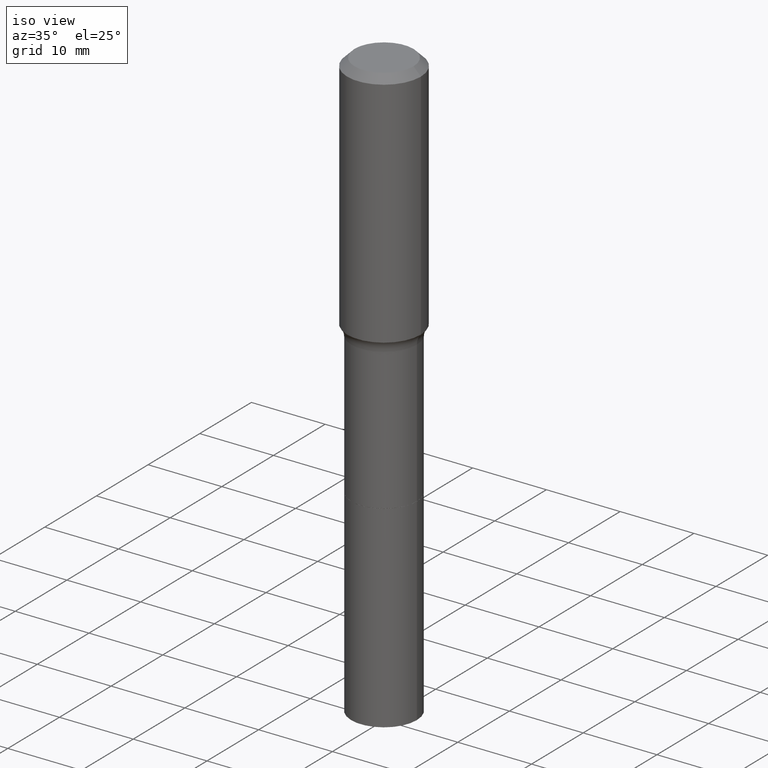
[diagram: clean part render]
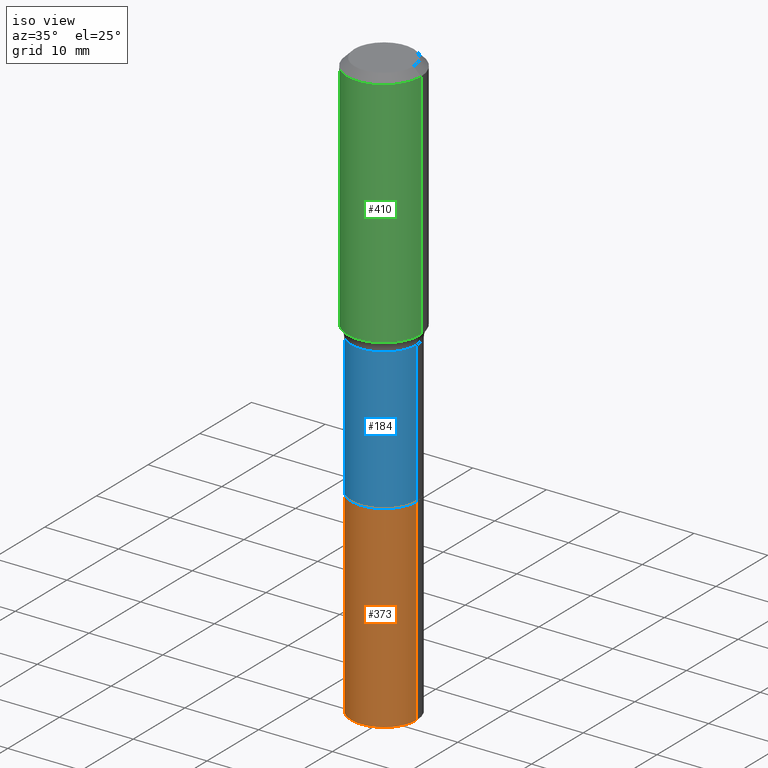
[diagram: same view with three faces highlighted in distinct colors, each labeled with its STEP entity id]
A machine part, iso view with three faces highlighted in distinct colors.
Their STEP definitions:

[orange] entity #373 — the highlighted cylindrical surface (partial cylindrical patch) has radius 4.4501 mm, axis along (-0, 0, 1).
#24 = ORIENTED_EDGE ( 'NONE', *, *, #315, .T. ) ;
#35 = CARTESIAN_POINT ( 'NONE',  ( 5.122278961435387736E-29, -7.313256812340853051E-15, -2.094600000000000239 ) ) ;
#40 = EDGE_CURVE ( 'NONE', #203, #352, #257, .T. ) ;
#47 = ORIENTED_EDGE ( 'NONE', *, *, #207, .F. ) ;
#55 = ORIENTED_EDGE ( 'NONE', *, *, #176, .F. ) ;
#60 = VECTOR ( 'NONE', #334, 39.37007874015748143 ) ;
#72 = DIRECTION ( 'NONE',  ( -2.445468806185136597E-29, 3.491481338843145583E-15, 1.000000000000000000 ) ) ;
#93 = AXIS2_PLACEMENT_3D ( 'NONE', #404, #169, #510 ) ;
#100 = VECTOR ( 'NONE', #145, 39.37007874015748143 ) ;
#103 = CARTESIAN_POINT ( 'NONE',  ( 0.1752000000000001889, -1.222018468595100619E-14, -3.149600000000000399 ) ) ;
#131 = EDGE_LOOP ( 'NONE', ( #55, #24, #154, #47 ) ) ;
#145 = DIRECTION ( 'NONE',  ( -2.445468806185136877E-29, 3.491481338843145188E-15, 1.000000000000000000 ) ) ;
#154 = ORIENTED_EDGE ( 'NONE', *, *, #40, .T. ) ;
#161 = AXIS2_PLACEMENT_3D ( 'NONE', #35, #72, #500 ) ;
#169 = DIRECTION ( 'NONE',  ( -2.445468806185136597E-29, 3.491481338843145583E-15, 1.000000000000000000 ) ) ;
#176 = EDGE_CURVE ( 'NONE', #420, #361, #221, .T. ) ;
#194 = CARTESIAN_POINT ( 'NONE',  ( 5.122278961435387736E-29, -7.313256812340853051E-15, -2.094600000000000239 ) ) ;
#203 = VERTEX_POINT ( 'NONE', #103 ) ;
#207 = EDGE_CURVE ( 'NONE', #361, #352, #399, .T. ) ;
#221 = LINE ( 'NONE', #412, #60 ) ;
#242 = FACE_OUTER_BOUND ( 'NONE', #131, .T. ) ;
#246 = AXIS2_PLACEMENT_3D ( 'NONE', #194, #340, #309 ) ;
#257 = LINE ( 'NONE', #501, #100 ) ;
#262 = CIRCLE ( 'NONE', #93, 0.1752000000000001889 ) ;
#309 = DIRECTION ( 'NONE',  ( 1.000000000000000000, -6.982962677686269077E-15, 0.000000000000000000 ) ) ;
#315 = EDGE_CURVE ( 'NONE', #420, #203, #262, .T. ) ;
#334 = DIRECTION ( 'NONE',  ( -2.445468806185136877E-29, 3.491481338843145188E-15, 1.000000000000000000 ) ) ;
#340 = DIRECTION ( 'NONE',  ( -2.445468806185136597E-29, 3.491481338843145583E-15, 1.000000000000000000 ) ) ;
#348 = CARTESIAN_POINT ( 'NONE',  ( -0.1751999999999999946, -7.910142345528915418E-15, -2.094600000000000239 ) ) ;
#352 = VERTEX_POINT ( 'NONE', #434 ) ;
#361 = VERTEX_POINT ( 'NONE', #348 ) ;
#373 = ADVANCED_FACE ( 'NONE', ( #242 ), #424, .T. ) ;
#399 = CIRCLE ( 'NONE', #246, 0.1751999999999999946 ) ;
#404 = CARTESIAN_POINT ( 'NONE',  ( 7.702248551960706711E-29, -1.099676962482037231E-14, -3.149600000000000399 ) ) ;
#412 = CARTESIAN_POINT ( 'NONE',  ( -0.1752000000000000779, -6.068385939289156578E-15, -2.094600000000000239 ) ) ;
#420 = VERTEX_POINT ( 'NONE', #511 ) ;
#424 = CYLINDRICAL_SURFACE ( 'NONE', #161, 0.1752000000000000779 ) ;
#434 = CARTESIAN_POINT ( 'NONE',  ( 0.1751999999999999946, -8.536671873471486928E-15, -2.094600000000000239 ) ) ;
#500 = DIRECTION ( 'NONE',  ( 1.000000000000000000, -6.982962677686265922E-15, 0.000000000000000000 ) ) ;
#501 = CARTESIAN_POINT ( 'NONE',  ( 0.1752000000000000779, -8.536671873471486928E-15, -2.094600000000000239 ) ) ;
#510 = DIRECTION ( 'NONE',  ( 1.000000000000000000, -6.982962677686261189E-15, 0.000000000000000000 ) ) ;
#511 = CARTESIAN_POINT ( 'NONE',  ( -0.1752000000000001889, -7.910142345528913840E-15, -3.149600000000000399 ) ) ;

[blue] entity #184 — the highlighted cylindrical surface (partial cylindrical patch) has radius 4.4501 mm, axis along (-0, 0, 1).
#2 = CARTESIAN_POINT ( 'NONE',  ( 0.1751999999999998836, -5.897111981306068614E-15, -1.338600000000000234 ) ) ;
#5 = ORIENTED_EDGE ( 'NONE', *, *, #284, .T. ) ;
#16 = FACE_OUTER_BOUND ( 'NONE', #251, .T. ) ;
#20 = VECTOR ( 'NONE', #397, 39.37007874015748143 ) ;
#44 = DIRECTION ( 'NONE',  ( -2.445468806185136597E-29, 3.491481338843145583E-15, 1.000000000000000000 ) ) ;
#46 = CARTESIAN_POINT ( 'NONE',  ( -0.1751999999999999391, 1.244870873051695093E-15, -8.617974278126592972E-30 ) ) ;
#63 = EDGE_CURVE ( 'NONE', #268, #492, #302, .T. ) ;
#76 = CARTESIAN_POINT ( 'NONE',  ( 0.1751999999999999946, -8.534926132802064636E-15, -2.094100000000000072 ) ) ;
#78 = DIRECTION ( 'NONE',  ( 1.000000000000000000, -6.982962677686266711E-15, 4.876176775795935793E-29 ) ) ;
#80 = EDGE_CURVE ( 'NONE', #436, #492, #282, .T. ) ;
#98 = CARTESIAN_POINT ( 'NONE',  ( 3.273504543959424474E-29, -4.673696920175435525E-15, -1.338600000000000234 ) ) ;
#110 = DIRECTION ( 'NONE',  ( 1.000000000000000000, -6.982962677686267499E-15, 0.000000000000000000 ) ) ;
#117 = AXIS2_PLACEMENT_3D ( 'NONE', #387, #196, #391 ) ;
#167 = CARTESIAN_POINT ( 'NONE',  ( -0.1751999999999999946, -4.747733122871737457E-15, -2.094100000000000072 ) ) ;
#184 = ADVANCED_FACE ( 'NONE', ( #16 ), #245, .T. ) ;
#196 = DIRECTION ( 'NONE',  ( -2.445468806185136597E-29, 3.491481338843145583E-15, 1.000000000000000000 ) ) ;
#211 = VECTOR ( 'NONE', #382, 39.37007874015748143 ) ;
#217 = ORIENTED_EDGE ( 'NONE', *, *, #80, .F. ) ;
#245 = CYLINDRICAL_SURFACE ( 'NONE', #418, 0.1751999999999999391 ) ;
#251 = EDGE_LOOP ( 'NONE', ( #409, #5, #311, #217 ) ) ;
#268 = VERTEX_POINT ( 'NONE', #76 ) ;
#282 = CIRCLE ( 'NONE', #445, 0.1751999999999998836 ) ;
#284 = EDGE_CURVE ( 'NONE', #472, #268, #489, .T. ) ;
#302 = LINE ( 'NONE', #488, #211 ) ;
#311 = ORIENTED_EDGE ( 'NONE', *, *, #63, .T. ) ;
#324 = LINE ( 'NONE', #46, #20 ) ;
#342 = CARTESIAN_POINT ( 'NONE',  ( -0.1751999999999998836, -4.747733122871738246E-15, -1.338600000000000234 ) ) ;
#355 = CARTESIAN_POINT ( 'NONE',  ( 0.000000000000000000, 0.000000000000000000, 0.000000000000000000 ) ) ;
#382 = DIRECTION ( 'NONE',  ( -2.445468806185136877E-29, 3.491481338843145188E-15, 1.000000000000000000 ) ) ;
#387 = CARTESIAN_POINT ( 'NONE',  ( 5.121056227032294935E-29, -7.311511071671430759E-15, -2.094100000000000072 ) ) ;
#391 = DIRECTION ( 'NONE',  ( 1.000000000000000000, -6.982962677686263555E-15, 0.000000000000000000 ) ) ;
#397 = DIRECTION ( 'NONE',  ( -2.445468806185136877E-29, 3.491481338843145188E-15, 1.000000000000000000 ) ) ;
#409 = ORIENTED_EDGE ( 'NONE', *, *, #450, .F. ) ;
#418 = AXIS2_PLACEMENT_3D ( 'NONE', #355, #44, #78 ) ;
#436 = VERTEX_POINT ( 'NONE', #342 ) ;
#445 = AXIS2_PLACEMENT_3D ( 'NONE', #98, #449, #110 ) ;
#449 = DIRECTION ( 'NONE',  ( -2.445468806185136597E-29, 3.491481338843145583E-15, 1.000000000000000000 ) ) ;
#450 = EDGE_CURVE ( 'NONE', #472, #436, #324, .T. ) ;
#472 = VERTEX_POINT ( 'NONE', #167 ) ;
#488 = CARTESIAN_POINT ( 'NONE',  ( 0.1751999999999999391, -1.223415061130633483E-15, 8.543061711194476516E-30 ) ) ;
#489 = CIRCLE ( 'NONE', #117, 0.1751999999999999946 ) ;
#492 = VERTEX_POINT ( 'NONE', #2 ) ;

[green] entity #410 — the highlighted cylindrical surface (partial cylindrical patch) has radius 5 mm, axis along (-0, 0, 1).
#1 = DIRECTION ( 'NONE',  ( -2.445468806185136877E-29, 3.491481338843145188E-15, 1.000000000000000000 ) ) ;
#27 = DIRECTION ( 'NONE',  ( 1.000000000000000000, -6.982962677686266711E-15, 4.876176775795935793E-29 ) ) ;
#32 = EDGE_CURVE ( 'NONE', #233, #358, #407, .T. ) ;
#42 = ORIENTED_EDGE ( 'NONE', *, *, #189, .T. ) ;
#68 = VECTOR ( 'NONE', #1, 39.37007874015748143 ) ;
#73 = ORIENTED_EDGE ( 'NONE', *, *, #366, .T. ) ;
#142 = VECTOR ( 'NONE', #310, 39.37007874015748143 ) ;
#148 = DIRECTION ( 'NONE',  ( -2.445468806185136597E-29, 3.491481338843145583E-15, 1.000000000000000000 ) ) ;
#153 = CARTESIAN_POINT ( 'NONE',  ( 0.1968500000000001915, -5.857205674196988866E-15, -1.283870379378770243 ) ) ;
#155 = CARTESIAN_POINT ( 'NONE',  ( 0.1968500000000001082, -1.374596203102542397E-15, 9.598753983154305062E-30 ) ) ;
#183 = CARTESIAN_POINT ( 'NONE',  ( 9.627810689950955906E-31, -1.374596203102556794E-16, -0.03937000000000030059 ) ) ;
#189 = EDGE_CURVE ( 'NONE', #403, #358, #507, .T. ) ;
#227 = CARTESIAN_POINT ( 'NONE',  ( 3.139664963955859804E-29, -4.482609471094445680E-15, -1.283870379378770243 ) ) ;
#233 = VERTEX_POINT ( 'NONE', #235 ) ;
#235 = CARTESIAN_POINT ( 'NONE',  ( -0.1968500000000000527, -9.113311703585926457E-16, -0.03937000000000030059 ) ) ;
#241 = CIRCLE ( 'NONE', #323, 0.1968500000000001915 ) ;
#247 = CARTESIAN_POINT ( 'NONE',  ( 0.1968500000000000527, -1.512055823412797583E-15, -0.03937000000000030059 ) ) ;
#253 = VERTEX_POINT ( 'NONE', #383 ) ;
#271 = DIRECTION ( 'NONE',  ( 1.000000000000000000, -6.982962677686266711E-15, 0.000000000000000000 ) ) ;
#274 = DIRECTION ( 'NONE',  ( -2.445468806185136597E-29, 3.491481338843145583E-15, 1.000000000000000000 ) ) ;
#298 = AXIS2_PLACEMENT_3D ( 'NONE', #388, #148, #27 ) ;
#310 = DIRECTION ( 'NONE',  ( -2.445468806185136877E-29, 3.491481338843145188E-15, 1.000000000000000000 ) ) ;
#323 = AXIS2_PLACEMENT_3D ( 'NONE', #227, #274, #379 ) ;
#326 = EDGE_CURVE ( 'NONE', #253, #233, #396, .T. ) ;
#358 = VERTEX_POINT ( 'NONE', #247 ) ;
#366 = EDGE_CURVE ( 'NONE', #253, #403, #241, .T. ) ;
#379 = DIRECTION ( 'NONE',  ( 1.000000000000000000, -6.982962677686266711E-15, 0.000000000000000000 ) ) ;
#383 = CARTESIAN_POINT ( 'NONE',  ( -0.1968500000000001915, -3.083906095750687498E-15, -1.283870379378770243 ) ) ;
#384 = CYLINDRICAL_SURFACE ( 'NONE', #298, 0.1968500000000001082 ) ;
#388 = CARTESIAN_POINT ( 'NONE',  ( 0.000000000000000000, 0.000000000000000000, 0.000000000000000000 ) ) ;
#393 = FACE_OUTER_BOUND ( 'NONE', #512, .T. ) ;
#396 = LINE ( 'NONE', #475, #68 ) ;
#403 = VERTEX_POINT ( 'NONE', #153 ) ;
#407 = CIRCLE ( 'NONE', #513, 0.1968500000000000527 ) ;
#410 = ADVANCED_FACE ( 'NONE', ( #393 ), #384, .T. ) ;
#475 = CARTESIAN_POINT ( 'NONE',  ( -0.1968500000000001082, 1.398703375343757985E-15, -9.682923725166787881E-30 ) ) ;
#480 = ORIENTED_EDGE ( 'NONE', *, *, #32, .F. ) ;
#494 = DIRECTION ( 'NONE',  ( -2.445468806185136597E-29, 3.491481338843145583E-15, 1.000000000000000000 ) ) ;
#507 = LINE ( 'NONE', #155, #142 ) ;
#512 = EDGE_LOOP ( 'NONE', ( #514, #73, #42, #480 ) ) ;
#513 = AXIS2_PLACEMENT_3D ( 'NONE', #183, #494, #271 ) ;
#514 = ORIENTED_EDGE ( 'NONE', *, *, #326, .F. ) ;